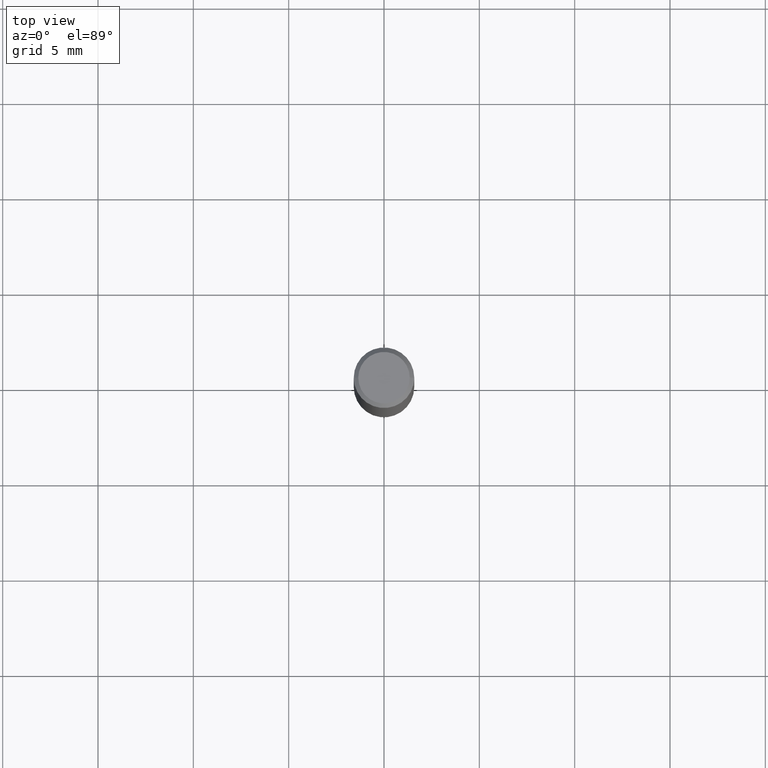
[diagram: clean part render]
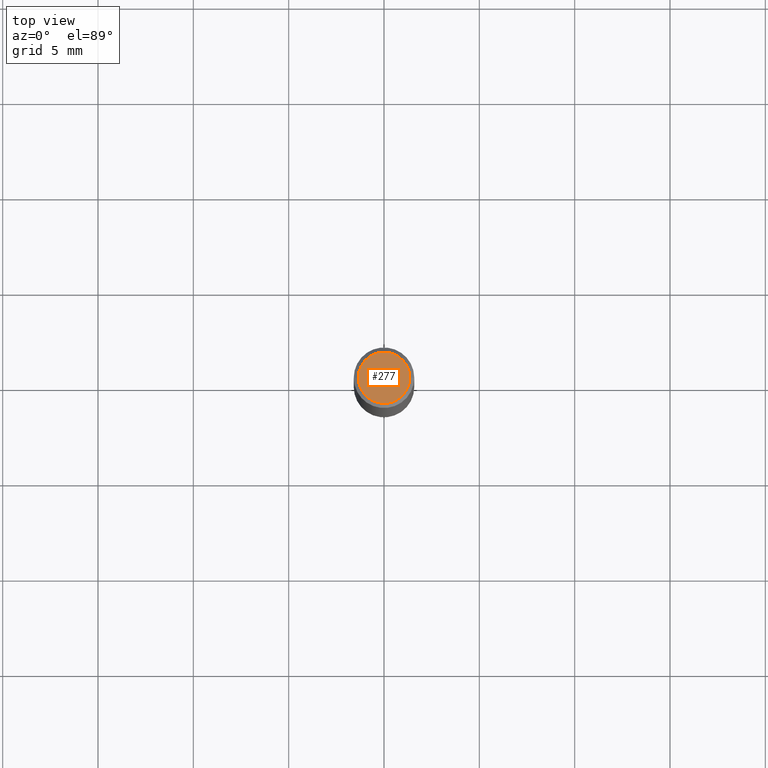
[diagram: same view with one face highlighted and labeled with its STEP entity id]
A machine part, top view. The second image highlights one B-rep face of the part: STEP entity #277.
In plain terms, the highlighted planar face has unit normal (0, -0, -1).
Its self-contained STEP definition (entity closure, byte-faithful):
#25 = AXIS2_PLACEMENT_3D ( 'NONE', #160, #45, #416 ) ;
#45 = DIRECTION ( 'NONE',  ( -2.445468806185136597E-29, 3.491481338843145583E-15, 1.000000000000000000 ) ) ;
#60 = PLANE ( 'NONE',  #478 ) ;
#67 = DIRECTION ( 'NONE',  ( -1.000000000000000000, 6.982962677686265922E-15, -4.876176775795935793E-29 ) ) ;
#69 = FACE_OUTER_BOUND ( 'NONE', #228, .T. ) ;
#79 = DIRECTION ( 'NONE',  ( -2.445468806185136597E-29, 3.491481338843145583E-15, 1.000000000000000000 ) ) ;
#107 = EDGE_CURVE ( 'NONE', #193, #191, #423, .T. ) ;
#138 = CARTESIAN_POINT ( 'NONE',  ( 0.05312499999999999861, -4.129888592719941322E-16, -3.903561672281913772E-17 ) ) ;
#160 = CARTESIAN_POINT ( 'NONE',  ( 9.546038302585977863E-46, -1.362921273379660165E-31, -3.903561672282188024E-17 ) ) ;
#172 = CARTESIAN_POINT ( 'NONE',  ( -0.05312499999999999861, 3.873362110279098601E-16, -3.903561672282453649E-17 ) ) ;
#191 = VERTEX_POINT ( 'NONE', #172 ) ;
#193 = VERTEX_POINT ( 'NONE', #138 ) ;
#217 = ORIENTED_EDGE ( 'NONE', *, *, #107, .T. ) ;
#228 = EDGE_LOOP ( 'NONE', ( #394, #217 ) ) ;
#237 = CIRCLE ( 'NONE', #286, 0.05312499999999999861 ) ;
#277 = ADVANCED_FACE ( 'NONE', ( #69 ), #60, .F. ) ;
#286 = AXIS2_PLACEMENT_3D ( 'NONE', #306, #79, #376 ) ;
#294 = DIRECTION ( 'NONE',  ( 2.438088387897960049E-29, -3.491481338843145188E-15, -1.000000000000000000 ) ) ;
#306 = CARTESIAN_POINT ( 'NONE',  ( 9.546038302585977863E-46, -1.362921273379660165E-31, -3.903561672282188024E-17 ) ) ;
#376 = DIRECTION ( 'NONE',  ( 1.000000000000000000, -6.982962677686266711E-15, 4.881282378734115390E-29 ) ) ;
#394 = ORIENTED_EDGE ( 'NONE', *, *, #439, .T. ) ;
#416 = DIRECTION ( 'NONE',  ( 1.000000000000000000, -6.982962677686266711E-15, 4.881282378734115390E-29 ) ) ;
#423 = CIRCLE ( 'NONE', #25, 0.05312499999999999861 ) ;
#439 = EDGE_CURVE ( 'NONE', #191, #193, #237, .T. ) ;
#478 = AXIS2_PLACEMENT_3D ( 'NONE', #479, #294, #67 ) ;
#479 = CARTESIAN_POINT ( 'NONE',  ( 4.773019151292988932E-46, -6.814606366898300824E-32, -1.951780836141094012E-17 ) ) ;